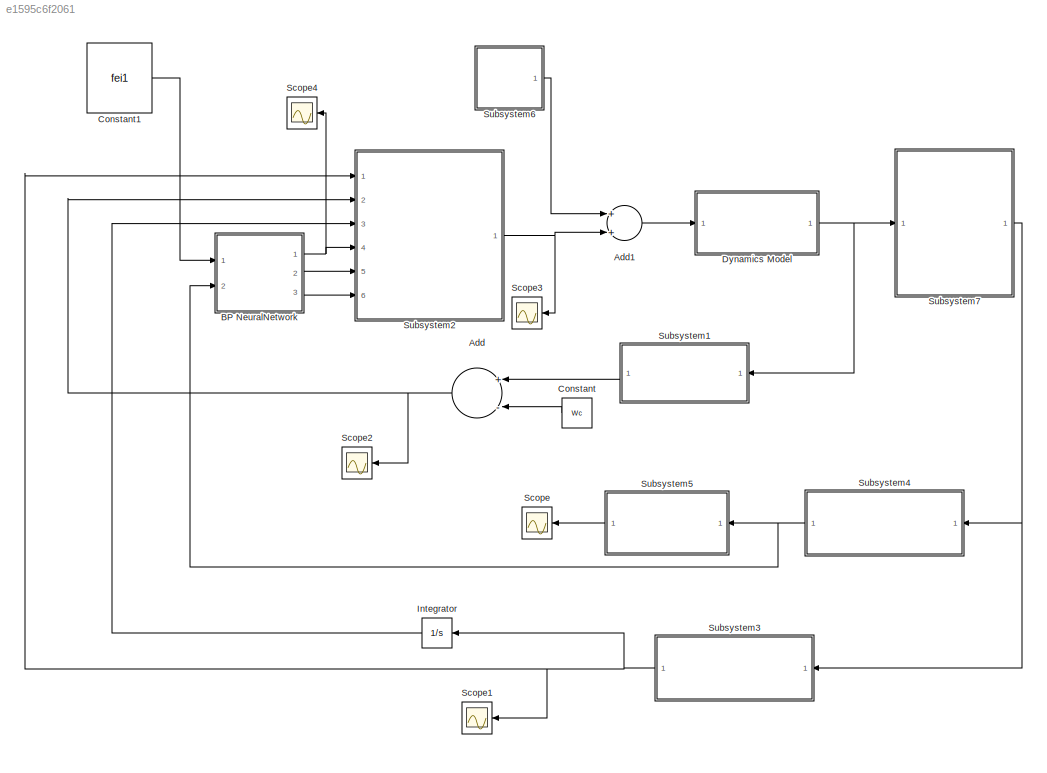
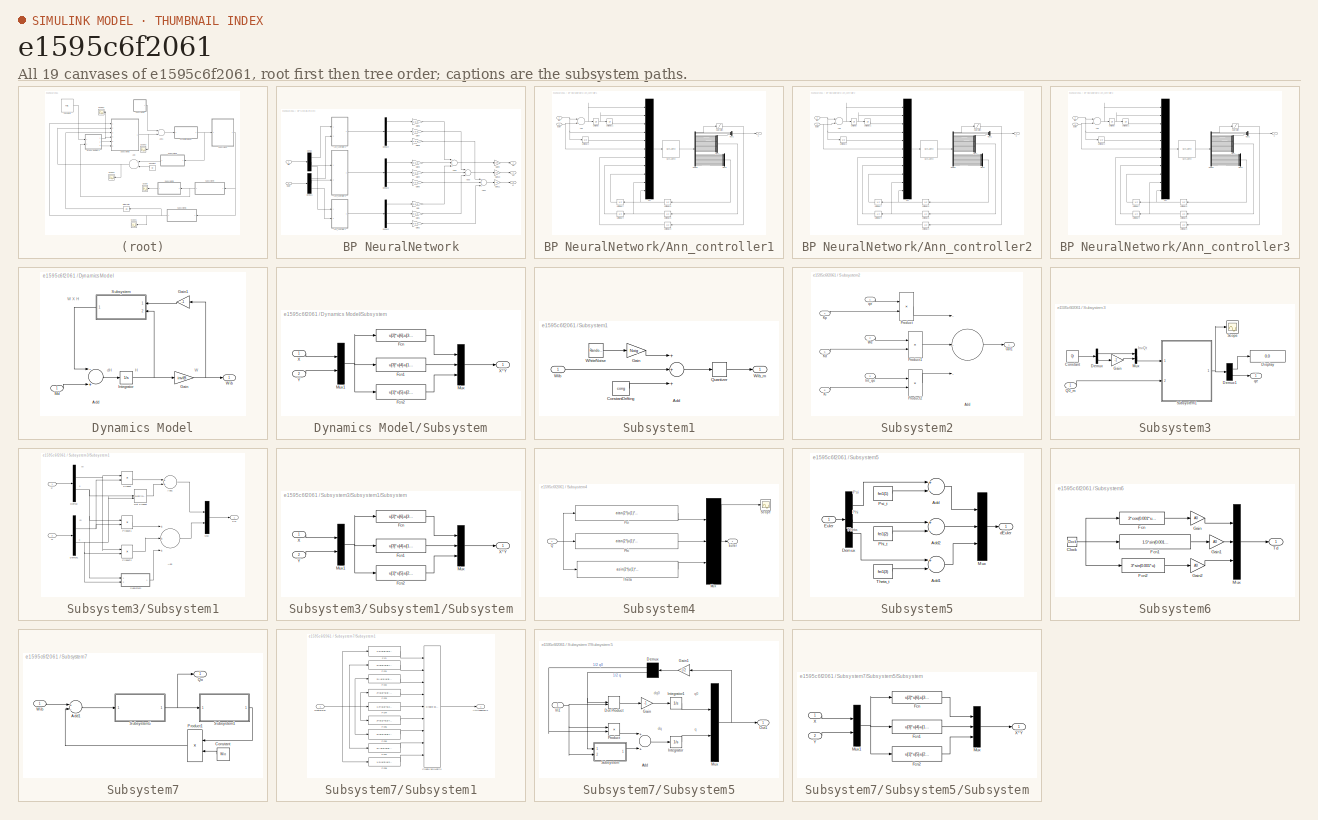
[diagram: thumbnail index - all 19 canvases of the model, root first then tree order]
MODEL slx_e1595c6f2061
KIND model
CONFIG AbsTol = auto
CONFIG FixedStep = auto
CONFIG MaxStep = auto
CONFIG MinStep = auto
CONFIG RelTol = 1e-3
CONFIG SampleTimeConstraint = Unconstrained
CONFIG Solver = VariableStepAuto
CONFIG SolverMode = Auto
CONFIG SolverName = VariableStepAuto
CONFIG StartTime = 0.0
CONFIG StopTime = 100
BLOCK [Sum] Add
  InputSameDT = off
  Inputs = +-
  OutDataTypeStr = Inherit: Inherit via internal rule
  Ports = [2, 1]
  SaturateOnIntegerOverflow = off
BLOCK [Sum] Add1
  InputSameDT = off
  OutDataTypeStr = Inherit: Inherit via internal rule
  Ports = [2, 1]
  SaturateOnIntegerOverflow = off
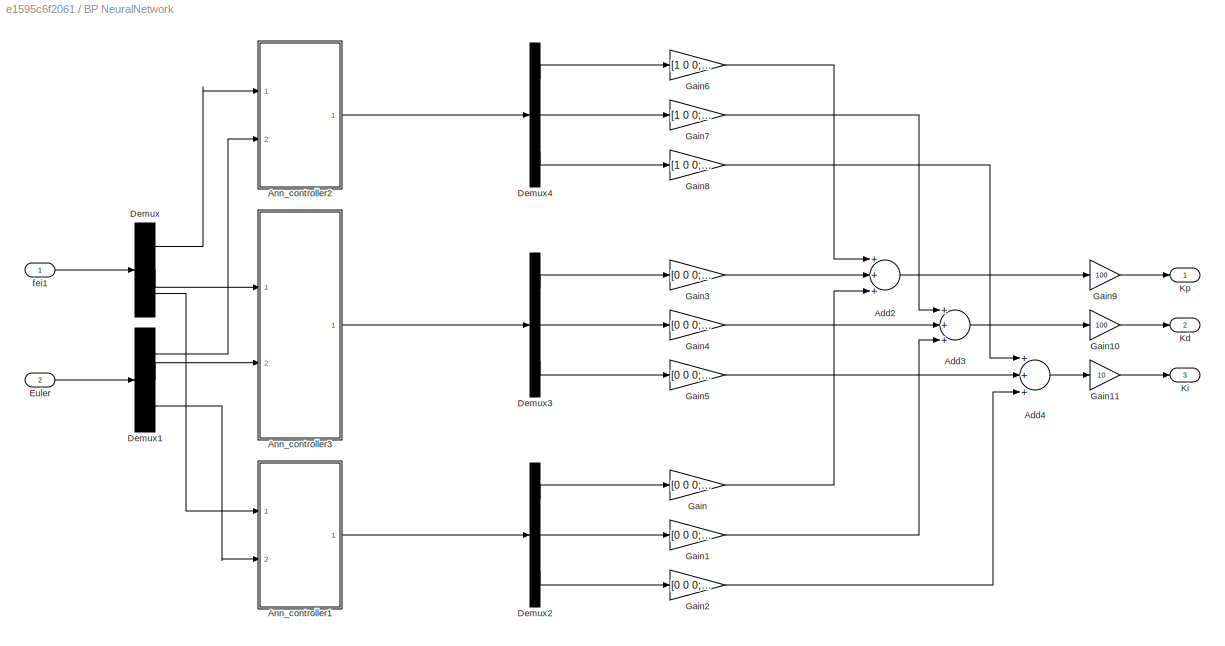
BLOCK [SubSystem] BP NeuralNetwork
  Ports = [2, 3]
  RequestExecContextInheritance = off
  Variant = off
BLOCK [Sum] BP NeuralNetwork/Add2
  InputSameDT = off
  Inputs = +++
  OutDataTypeStr = Inherit: Inherit via internal rule
  Ports = [3, 1]
  SaturateOnIntegerOverflow = off
BLOCK [Sum] BP NeuralNetwork/Add3
  InputSameDT = off
  Inputs = +++
  OutDataTypeStr = Inherit: Inherit via internal rule
  Ports = [3, 1]
  SaturateOnIntegerOverflow = off
BLOCK [Sum] BP NeuralNetwork/Add4
  InputSameDT = off
  Inputs = +++
  OutDataTypeStr = Inherit: Inherit via internal rule
  Ports = [3, 1]
  SaturateOnIntegerOverflow = off
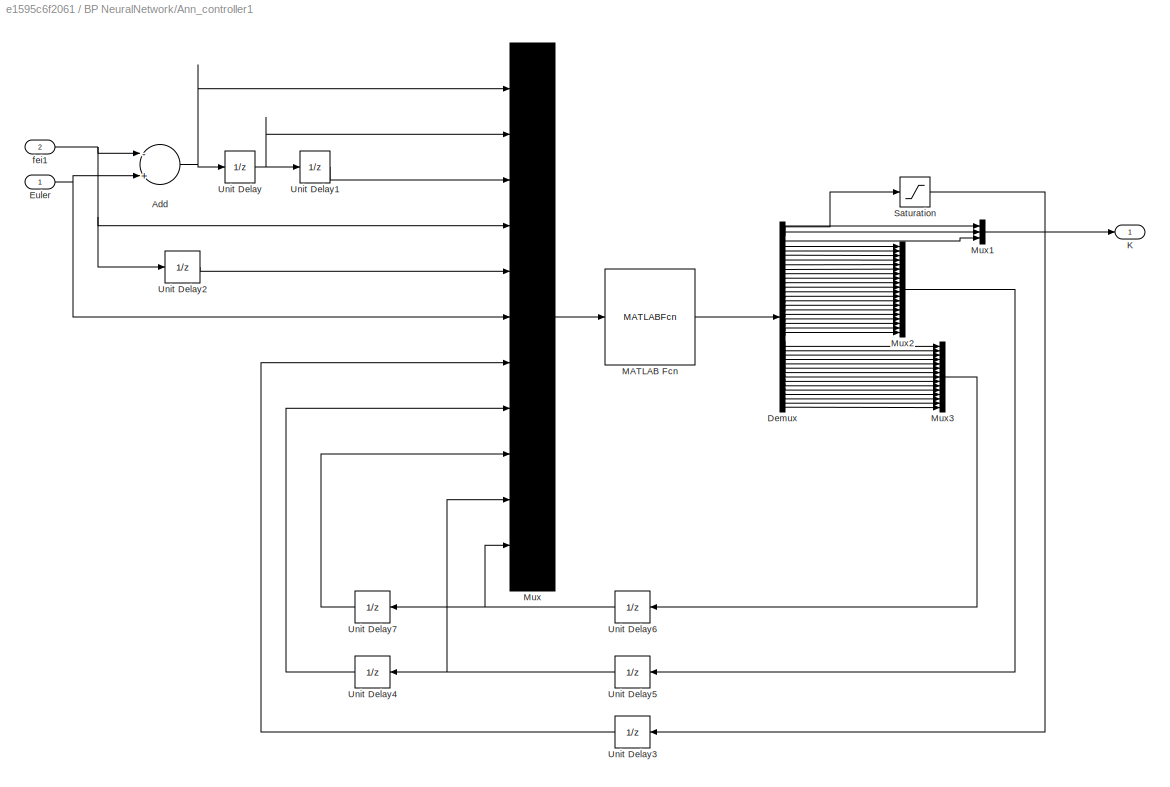
BLOCK [SubSystem] BP NeuralNetwork/Ann_controller1
  Ports = [2, 1]
  RequestExecContextInheritance = off
  Variant = off
BLOCK [Sum] BP NeuralNetwork/Ann_controller1/Add
  InputSameDT = off
  Inputs = -+
  OutDataTypeStr = Inherit: Inherit via internal rule
  Ports = [2, 1]
  SaturateOnIntegerOverflow = off
BLOCK [Demux] BP NeuralNetwork/Ann_controller1/Demux
  DisplayOption = bar
  Outputs = 39
  Ports = [1, 39]
BLOCK [Inport] BP NeuralNetwork/Ann_controller1/Euler
  IconDisplay = Port number
BLOCK [Outport] BP NeuralNetwork/Ann_controller1/K
  IconDisplay = Port number
BLOCK [MATLABFcn] BP NeuralNetwork/Ann_controller1/MATLAB Fcn
  MATLABFcn = BP_pid
  Output1D = off
  Ports = [1, 1]
BLOCK [Mux] BP NeuralNetwork/Ann_controller1/Mux
  DisplayOption = bar
  Inputs = 11
  Ports = [11, 1]
BLOCK [Mux] BP NeuralNetwork/Ann_controller1/Mux1
  DisplayOption = bar
  Inputs = 3
  Ports = [3, 1]
BLOCK [Mux] BP NeuralNetwork/Ann_controller1/Mux2
  DisplayOption = bar
  Inputs = 20
  Ports = [20, 1]
BLOCK [Mux] BP NeuralNetwork/Ann_controller1/Mux3
  DisplayOption = bar
  Inputs = 15
  Ports = [15, 1]
BLOCK [Saturate] BP NeuralNetwork/Ann_controller1/Saturation
  InputPortMap = u0
  LowerLimit = 0
  Ports = [1, 1]
  UpperLimit = 1
BLOCK [UnitDelay] BP NeuralNetwork/Ann_controller1/Unit Delay
BLOCK [UnitDelay] BP NeuralNetwork/Ann_controller1/Unit Delay1
BLOCK [UnitDelay] BP NeuralNetwork/Ann_controller1/Unit Delay2
BLOCK [UnitDelay] BP NeuralNetwork/Ann_controller1/Unit Delay3
BLOCK [UnitDelay] BP NeuralNetwork/Ann_controller1/Unit Delay4
  InitialCondition = rand(20,1)
BLOCK [UnitDelay] BP NeuralNetwork/Ann_controller1/Unit Delay5
  InitialCondition = rand(20,1)
BLOCK [UnitDelay] BP NeuralNetwork/Ann_controller1/Unit Delay6
  InitialCondition = rand(15,1)
BLOCK [UnitDelay] BP NeuralNetwork/Ann_controller1/Unit Delay7
  InitialCondition = rand(15,1)
BLOCK [Inport] BP NeuralNetwork/Ann_controller1/fei1
  IconDisplay = Port number
  Port = 2
BLOCK [SubSystem] BP NeuralNetwork/Ann_controller2
  Ports = [2, 1]
  RequestExecContextInheritance = off
  Variant = off
BLOCK [Sum] BP NeuralNetwork/Ann_controller2/Add
  InputSameDT = off
  Inputs = -+
  OutDataTypeStr = Inherit: Inherit via internal rule
  Ports = [2, 1]
  SaturateOnIntegerOverflow = off
BLOCK [Demux] BP NeuralNetwork/Ann_controller2/Demux
  DisplayOption = bar
  Outputs = 39
  Ports = [1, 39]
BLOCK [Inport] BP NeuralNetwork/Ann_controller2/Euler
  IconDisplay = Port number
BLOCK [Outport] BP NeuralNetwork/Ann_controller2/K
  IconDisplay = Port number
BLOCK [MATLABFcn] BP NeuralNetwork/Ann_controller2/MATLAB Fcn
  MATLABFcn = BP_pid
  Output1D = off
  Ports = [1, 1]
BLOCK [Mux] BP NeuralNetwork/Ann_controller2/Mux
  DisplayOption = bar
  Inputs = 11
  Ports = [11, 1]
BLOCK [Mux] BP NeuralNetwork/Ann_controller2/Mux1
  DisplayOption = bar
  Inputs = 3
  Ports = [3, 1]
BLOCK [Mux] BP NeuralNetwork/Ann_controller2/Mux2
  DisplayOption = bar
  Inputs = 20
  Ports = [20, 1]
BLOCK [Mux] BP NeuralNetwork/Ann_controller2/Mux3
  DisplayOption = bar
  Inputs = 15
  Ports = [15, 1]
BLOCK [Saturate] BP NeuralNetwork/Ann_controller2/Saturation
  InputPortMap = u0
  LowerLimit = 0
  Ports = [1, 1]
  UpperLimit = 1
BLOCK [UnitDelay] BP NeuralNetwork/Ann_controller2/Unit Delay
BLOCK [UnitDelay] BP NeuralNetwork/Ann_controller2/Unit Delay1
BLOCK [UnitDelay] BP NeuralNetwork/Ann_controller2/Unit Delay2
BLOCK [UnitDelay] BP NeuralNetwork/Ann_controller2/Unit Delay3
BLOCK [UnitDelay] BP NeuralNetwork/Ann_controller2/Unit Delay4
  InitialCondition = rand(20,1)
BLOCK [UnitDelay] BP NeuralNetwork/Ann_controller2/Unit Delay5
  InitialCondition = rand(20,1)
BLOCK [UnitDelay] BP NeuralNetwork/Ann_controller2/Unit Delay6
  InitialCondition = rand(15,1)
BLOCK [UnitDelay] BP NeuralNetwork/Ann_controller2/Unit Delay7
  InitialCondition = rand(15,1)
BLOCK [Inport] BP NeuralNetwork/Ann_controller2/fei1
  IconDisplay = Port number
  Port = 2
BLOCK [SubSystem] BP NeuralNetwork/Ann_controller3
  Ports = [2, 1]
  RequestExecContextInheritance = off
  Variant = off
BLOCK [Sum] BP NeuralNetwork/Ann_controller3/Add
  InputSameDT = off
  Inputs = -+
  OutDataTypeStr = Inherit: Inherit via internal rule
  Ports = [2, 1]
  SaturateOnIntegerOverflow = off
BLOCK [Demux] BP NeuralNetwork/Ann_controller3/Demux
  DisplayOption = bar
  Outputs = 39
  Ports = [1, 39]
BLOCK [Inport] BP NeuralNetwork/Ann_controller3/Euler
  IconDisplay = Port number
BLOCK [Outport] BP NeuralNetwork/Ann_controller3/K
  IconDisplay = Port number
BLOCK [MATLABFcn] BP NeuralNetwork/Ann_controller3/MATLAB Fcn
  MATLABFcn = BP_pid
  Output1D = off
  Ports = [1, 1]
BLOCK [Mux] BP NeuralNetwork/Ann_controller3/Mux
  DisplayOption = bar
  Inputs = 11
  Ports = [11, 1]
BLOCK [Mux] BP NeuralNetwork/Ann_controller3/Mux1
  DisplayOption = bar
  Inputs = 3
  Ports = [3, 1]
BLOCK [Mux] BP NeuralNetwork/Ann_controller3/Mux2
  DisplayOption = bar
  Inputs = 20
  Ports = [20, 1]
BLOCK [Mux] BP NeuralNetwork/Ann_controller3/Mux3
  DisplayOption = bar
  Inputs = 15
  Ports = [15, 1]
BLOCK [Saturate] BP NeuralNetwork/Ann_controller3/Saturation
  InputPortMap = u0
  LowerLimit = 0
  Ports = [1, 1]
  UpperLimit = 1
BLOCK [UnitDelay] BP NeuralNetwork/Ann_controller3/Unit Delay
BLOCK [UnitDelay] BP NeuralNetwork/Ann_controller3/Unit Delay1
BLOCK [UnitDelay] BP NeuralNetwork/Ann_controller3/Unit Delay2
BLOCK [UnitDelay] BP NeuralNetwork/Ann_controller3/Unit Delay3
BLOCK [UnitDelay] BP NeuralNetwork/Ann_controller3/Unit Delay4
  InitialCondition = rand(20,1)
BLOCK [UnitDelay] BP NeuralNetwork/Ann_controller3/Unit Delay5
  InitialCondition = rand(20,1)
BLOCK [UnitDelay] BP NeuralNetwork/Ann_controller3/Unit Delay6
  InitialCondition = rand(15,1)
BLOCK [UnitDelay] BP NeuralNetwork/Ann_controller3/Unit Delay7
  InitialCondition = rand(15,1)
BLOCK [Inport] BP NeuralNetwork/Ann_controller3/fei1
  IconDisplay = Port number
  Port = 2
BLOCK [Demux] BP NeuralNetwork/Demux
  DisplayOption = bar
  Outputs = [1 1 1]
  Ports = [1, 3]
BLOCK [Demux] BP NeuralNetwork/Demux1
  DisplayOption = bar
  Outputs = [1;1;1]
  Ports = [1, 3]
BLOCK [Demux] BP NeuralNetwork/Demux2
  DisplayOption = bar
  Outputs = [1 1 1]
  Ports = [1, 3]
BLOCK [Demux] BP NeuralNetwork/Demux3
  DisplayOption = bar
  Outputs = [1 1 1]
  Ports = [1, 3]
BLOCK [Demux] BP NeuralNetwork/Demux4
  DisplayOption = bar
  Outputs = [1 1 1]
  Ports = [1, 3]
BLOCK [Inport] BP NeuralNetwork/Euler
  IconDisplay = Port number
  Port = 2
BLOCK [Gain] BP NeuralNetwork/Gain
  Gain = [0 0 0;0 0 0;0 0 1]
  OutDataTypeStr = Inherit: Inherit via internal rule
  ParamDataTypeStr = Inherit: Inherit via internal rule
  SaturateOnIntegerOverflow = off
BLOCK [Gain] BP NeuralNetwork/Gain1
  Gain = [0 0 0;0 0 0;0 0 1]
  OutDataTypeStr = Inherit: Inherit via internal rule
  ParamDataTypeStr = Inherit: Inherit via internal rule
  SaturateOnIntegerOverflow = off
BLOCK [Gain] BP NeuralNetwork/Gain10
  Gain = 100
  OutDataTypeStr = Inherit: Inherit via internal rule
  ParamDataTypeStr = Inherit: Inherit via internal rule
  SaturateOnIntegerOverflow = off
BLOCK [Gain] BP NeuralNetwork/Gain11
  Gain = 10
  OutDataTypeStr = Inherit: Inherit via internal rule
  ParamDataTypeStr = Inherit: Inherit via internal rule
  SaturateOnIntegerOverflow = off
BLOCK [Gain] BP NeuralNetwork/Gain2
  Gain = [0 0 0;0 0 0;0 0 1]
  OutDataTypeStr = Inherit: Inherit via internal rule
  ParamDataTypeStr = Inherit: Inherit via internal rule
  SaturateOnIntegerOverflow = off
BLOCK [Gain] BP NeuralNetwork/Gain3
  Gain = [0 0 0;0 1 0;0 0 0]
  OutDataTypeStr = Inherit: Inherit via internal rule
  ParamDataTypeStr = Inherit: Inherit via internal rule
  SaturateOnIntegerOverflow = off
BLOCK [Gain] BP NeuralNetwork/Gain4
  Gain = [0 0 0;0 1 0;0 0 0]
  OutDataTypeStr = Inherit: Inherit via internal rule
  ParamDataTypeStr = Inherit: Inherit via internal rule
  SaturateOnIntegerOverflow = off
BLOCK [Gain] BP NeuralNetwork/Gain5
  Gain = [0 0 0;0 1 0;0 0 0]
  OutDataTypeStr = Inherit: Inherit via internal rule
  ParamDataTypeStr = Inherit: Inherit via internal rule
  SaturateOnIntegerOverflow = off
BLOCK [Gain] BP NeuralNetwork/Gain6
  Gain = [1 0 0;0 0 0;0 0 0]
  OutDataTypeStr = Inherit: Inherit via internal rule
  ParamDataTypeStr = Inherit: Inherit via internal rule
  SaturateOnIntegerOverflow = off
BLOCK [Gain] BP NeuralNetwork/Gain7
  Gain = [1 0 0;0 0 0;0 0 0]
  OutDataTypeStr = Inherit: Inherit via internal rule
  ParamDataTypeStr = Inherit: Inherit via internal rule
  SaturateOnIntegerOverflow = off
BLOCK [Gain] BP NeuralNetwork/Gain8
  Gain = [1 0 0;0 0 0;0 0 0]
  OutDataTypeStr = Inherit: Inherit via internal rule
  ParamDataTypeStr = Inherit: Inherit via internal rule
  SaturateOnIntegerOverflow = off
BLOCK [Gain] BP NeuralNetwork/Gain9
  Gain = 100
  OutDataTypeStr = Inherit: Inherit via internal rule
  ParamDataTypeStr = Inherit: Inherit via internal rule
  SaturateOnIntegerOverflow = off
BLOCK [Outport] BP NeuralNetwork/Kd
  IconDisplay = Port number
  Port = 2
BLOCK [Outport] BP NeuralNetwork/Ki
  IconDisplay = Port number
  Port = 3
BLOCK [Outport] BP NeuralNetwork/Kp
  IconDisplay = Port number
BLOCK [Inport] BP NeuralNetwork/fei1
  IconDisplay = Port number
BLOCK [Constant] Constant
  Value = Wc
BLOCK [Constant] Constant1
  Value = fei1
BLOCK [SubSystem] Dynamics Model
  Ports = [1, 1]
  RequestExecContextInheritance = off
  Variant = off
BLOCK [Sum] Dynamics Model/Add
  InputSameDT = off
  Inputs = -+
  OutDataTypeStr = Inherit: Inherit via internal rule
  Ports = [2, 1]
  SaturateOnIntegerOverflow = off
BLOCK [Gain] Dynamics Model/Gain
  Gain = invIB
  Multiplication = Matrix(u*K)
  OutDataTypeStr = Inherit: Inherit via internal rule
  ParamDataTypeStr = Inherit: Inherit via internal rule
  SaturateOnIntegerOverflow = off
BLOCK [Gain] Dynamics Model/Gain1
  Gain = -1
  OutDataTypeStr = Inherit: Inherit via internal rule
  ParamDataTypeStr = Inherit: Inherit via internal rule
  SaturateOnIntegerOverflow = off
BLOCK [Integrator] Dynamics Model/Integrator
  InitialCondition = HB0
  Ports = [1, 1]
BLOCK [Inport] Dynamics Model/Md
  IconDisplay = Port number
BLOCK [SubSystem] Dynamics Model/Subsystem
  Ports = [2, 1]
  RequestExecContextInheritance = off
  Variant = off
BLOCK [Fcn] Dynamics Model/Subsystem/Fcn
  Expr = u[2]*u[6]-u[3]*u[5]
BLOCK [Fcn] Dynamics Model/Subsystem/Fcn1
  Expr = u[3]*u[4]-u[1]*u[6]
BLOCK [Fcn] Dynamics Model/Subsystem/Fcn2
  Expr = u[1]*u[5]-u[2]*u[4]
BLOCK [Mux] Dynamics Model/Subsystem/Mux
  DisplayOption = bar
  Inputs = [1 1 1]
  Ports = [3, 1]
BLOCK [Mux] Dynamics Model/Subsystem/Mux1
  DisplayOption = bar
  Inputs = [3 3]
  Ports = [2, 1]
BLOCK [Inport] Dynamics Model/Subsystem/X
  IconDisplay = Port number
BLOCK [Outport] Dynamics Model/Subsystem/X*Y
  IconDisplay = Port number
BLOCK [Inport] Dynamics Model/Subsystem/Y
  IconDisplay = Port number
  Port = 2
BLOCK [Outport] Dynamics Model/Wib
  IconDisplay = Port number
BLOCK [Integrator] Integrator
  Ports = [1, 1]
BLOCK [Scope] Scope
  Ports = [1]
  ScopeSpecificationString = Simulink.scopes.TimeScopeBlockCfg('CurrentConfiguration', extmgr.ConfigurationSet(extmgr.Configuration('Core','General UI',true,'FigureColor',[1 1 1]),extmgr.Configuration('Core','Source UI',true),extmgr.Configuration('Sources','WiredSimulink',true,'DataLoggingVariableName','ScopeData1'),extmgr.Configuration('Visuals','Time Domain',true,'SerializedDisplays',{struct('MinYLimReal','-1.14389','MaxYLi...<+1731ch>
BLOCK [Scope] Scope1
  Ports = [1]
  ScopeSpecificationString = Simulink.scopes.TimeScopeBlockCfg('CurrentConfiguration', extmgr.ConfigurationSet(extmgr.Configuration('Core','General UI',true),extmgr.Configuration('Core','Source UI',true),extmgr.Configuration('Sources','WiredSimulink',true,'DataLoggingVariableName','ScopeData2'),extmgr.Configuration('Visuals','Time Domain',true,'SerializedDisplays',{struct('MinYLimReal','-0.42781','MaxYLimReal','0.71841','YLab...<+1401ch>
BLOCK [Scope] Scope2
  Ports = [1]
  ScopeSpecificationString = Simulink.scopes.TimeScopeBlockCfg('CurrentConfiguration', extmgr.ConfigurationSet(extmgr.Configuration('Core','General UI',true,'FigureColor',[1 1 1]),extmgr.Configuration('Core','Source UI',true),extmgr.Configuration('Sources','WiredSimulink',true,'DataLoggingVariableName','ScopeData3'),extmgr.Configuration('Visuals','Time Domain',true,'SerializedDisplays',{struct('MinYLimReal','-0.62337','MaxYLi...<+1561ch>
BLOCK [Scope] Scope3
  Ports = [1]
  ScopeSpecificationString = Simulink.scopes.TimeScopeBlockCfg('CurrentConfiguration', extmgr.ConfigurationSet(extmgr.Configuration('Core','General UI',true,'FigureColor',[1 1 1]),extmgr.Configuration('Core','Source UI',true),extmgr.Configuration('Sources','WiredSimulink',true,'DataLoggingVariableName','ScopeData4'),extmgr.Configuration('Visuals','Time Domain',true,'SerializedDisplays',{struct('MinYLimReal','-62.59981','MaxYL...<+1789ch>
BLOCK [Scope] Scope4
  Ports = [1]
  ScopeSpecificationString = Simulink.scopes.TimeScopeBlockCfg('CurrentConfiguration', extmgr.ConfigurationSet(extmgr.Configuration('Core','General UI',true),extmgr.Configuration('Core','Source UI',true),extmgr.Configuration('Sources','WiredSimulink',true,'DataLoggingVariableName','ScopeData1'),extmgr.Configuration('Visuals','Time Domain',true,'SerializedDisplays',{struct('MinYLimReal','-11.88309','MaxYLimReal','106.94784','Y...<+1600ch>
BLOCK [SubSystem] Subsystem1
  Ports = [1, 1]
  RequestExecContextInheritance = off
  Variant = off
BLOCK [Sum] Subsystem1/Add
  InputSameDT = off
  Inputs = +++
  OutDataTypeStr = Inherit: Inherit via internal rule
  Ports = [3, 1]
  SaturateOnIntegerOverflow = off
BLOCK [Constant] Subsystem1/ConstantDrifting
  Value = cong
BLOCK [Gain] Subsystem1/Gain
  Gain = Noig
  OutDataTypeStr = Inherit: Inherit via internal rule
  ParamDataTypeStr = Inherit: Inherit via internal rule
  SaturateOnIntegerOverflow = off
BLOCK [Quantizer] Subsystem1/Quantizer
  QuantizationInterval = Gyquan
BLOCK [RandomNumber] Subsystem1/WhiteNoise
  Mean = [0,0,0]
  SampleTime = Tscontrol
  Seed = fix(abs(10000*rand([3,1])))
  Variance = [1,1,1]
BLOCK [Inport] Subsystem1/Wib
  IconDisplay = Port number
BLOCK [Outport] Subsystem1/Wib_m
  IconDisplay = Port number
BLOCK [SubSystem] Subsystem2
  Ports = [6, 1]
  RequestExecContextInheritance = off
  Variant = off
BLOCK [Sum] Subsystem2/Add
  InputSameDT = off
  Inputs = ---
  OutDataTypeStr = Inherit: Inherit via internal rule
  Ports = [3, 1]
  SaturateOnIntegerOverflow = off
BLOCK [Inport] Subsystem2/Int_qe
  IconDisplay = Port number
  Port = 3
BLOCK [Inport] Subsystem2/Kd
  IconDisplay = Port number
  Port = 5
BLOCK [Inport] Subsystem2/Ki
  IconDisplay = Port number
  Port = 6
BLOCK [Inport] Subsystem2/Kp
  IconDisplay = Port number
  Port = 4
BLOCK [Outport] Subsystem2/Out1
  IconDisplay = Port number
BLOCK [Product] Subsystem2/Product
  InputSameDT = off
  Multiplication = Matrix(*)
  OutDataTypeStr = Inherit: Inherit via internal rule
  Ports = [2, 1]
  RndMeth = Floor
  SaturateOnIntegerOverflow = off
BLOCK [Product] Subsystem2/Product1
  InputSameDT = off
  Multiplication = Matrix(*)
  OutDataTypeStr = Inherit: Inherit via internal rule
  Ports = [2, 1]
  RndMeth = Floor
  SaturateOnIntegerOverflow = off
BLOCK [Product] Subsystem2/Product2
  InputSameDT = off
  Multiplication = Matrix(*)
  OutDataTypeStr = Inherit: Inherit via internal rule
  Ports = [2, 1]
  RndMeth = Floor
  SaturateOnIntegerOverflow = off
BLOCK [Inport] Subsystem2/We
  IconDisplay = Port number
  Port = 2
BLOCK [Inport] Subsystem2/qe
  IconDisplay = Port number
BLOCK [SubSystem] Subsystem3
  Ports = [1, 1]
  RequestExecContextInheritance = off
  Variant = off
BLOCK [Constant] Subsystem3/Constant
  Value = Qt
BLOCK [Demux] Subsystem3/Demux
  DisplayOption = bar
  Outputs = 2
  Ports = [1, 2]
BLOCK [Demux] Subsystem3/Demux1
  DisplayOption = bar
  Outputs = [1 3]
  Ports = [1, 2]
BLOCK [Display] Subsystem3/Display
  Decimation = 1
  Ports = [1]
BLOCK [Gain] Subsystem3/Gain
  Gain = -1
  OutDataTypeStr = Inherit: Inherit via internal rule
  ParamDataTypeStr = Inherit: Inherit via internal rule
  SaturateOnIntegerOverflow = off
BLOCK [Mux] Subsystem3/Mux
  DisplayOption = bar
  Inputs = 2
  Ports = [2, 1]
BLOCK [Inport] Subsystem3/Q0_m
  IconDisplay = Port number
BLOCK [Scope] Subsystem3/Scope
  Ports = [1]
  ScopeSpecificationString = Simulink.scopes.TimeScopeBlockCfg('CurrentConfiguration', extmgr.ConfigurationSet(extmgr.Configuration('Core','General UI',true,'FigureColor',[1 1 1]),extmgr.Configuration('Core','Source UI',true),extmgr.Configuration('Sources','WiredSimulink',true,'DataLoggingVariableName','ScopeData1'),extmgr.Configuration('Visuals','Time Domain',true,'SerializedDisplays',{struct('MinYLimReal','-0.4765','MaxYLim...<+1884ch>
BLOCK [SubSystem] Subsystem3/Subsystem1
  Ports = [2, 1]
  RequestExecContextInheritance = off
  Variant = off
BLOCK [Sum] Subsystem3/Subsystem1/Add
  InputSameDT = off
  Inputs = +++
  OutDataTypeStr = Inherit: Inherit via internal rule
  Ports = [3, 1]
  SaturateOnIntegerOverflow = off
BLOCK [Sum] Subsystem3/Subsystem1/Add1
  InputSameDT = off
  OutDataTypeStr = Inherit: Inherit via internal rule
  Ports = [2, 1]
  SaturateOnIntegerOverflow = off
BLOCK [Demux] Subsystem3/Subsystem1/Demux
  DisplayOption = bar
  Outputs = [1 3]
  Ports = [1, 2]
BLOCK [Demux] Subsystem3/Subsystem1/Demux1
  DisplayOption = bar
  Outputs = [1 3]
  Ports = [1, 2]
BLOCK [DotProduct] Subsystem3/Subsystem1/Dot Product
  OutDataTypeStr = Inherit: Inherit via internal rule
BLOCK [Mux] Subsystem3/Subsystem1/Mux
  DisplayOption = bar
  Inputs = 2
  Ports = [2, 1]
BLOCK [Inport] Subsystem3/Subsystem1/P
  IconDisplay = Port number
BLOCK [Outport] Subsystem3/Subsystem1/PQ
  IconDisplay = Port number
BLOCK [Product] Subsystem3/Subsystem1/Product
  InputSameDT = off
  OutDataTypeStr = Inherit: Inherit via internal rule
  Ports = [2, 1]
  RndMeth = Floor
  SaturateOnIntegerOverflow = off
BLOCK [Product] Subsystem3/Subsystem1/Product1
  InputSameDT = off
  OutDataTypeStr = Inherit: Inherit via internal rule
  Ports = [2, 1]
  RndMeth = Floor
  SaturateOnIntegerOverflow = off
BLOCK [Product] Subsystem3/Subsystem1/Product2
  InputSameDT = off
  OutDataTypeStr = Inherit: Inherit via internal rule
  Ports = [2, 1]
  RndMeth = Floor
  SaturateOnIntegerOverflow = off
BLOCK [Inport] Subsystem3/Subsystem1/Q
  IconDisplay = Port number
  Port = 2
BLOCK [SubSystem] Subsystem3/Subsystem1/Subsystem
  Ports = [2, 1]
  RequestExecContextInheritance = off
  Variant = off
BLOCK [Fcn] Subsystem3/Subsystem1/Subsystem/Fcn
  Expr = u[2]*u[6]-u[3]*u[5]
BLOCK [Fcn] Subsystem3/Subsystem1/Subsystem/Fcn1
  Expr = u[3]*u[4]-u[1]*u[6]
BLOCK [Fcn] Subsystem3/Subsystem1/Subsystem/Fcn2
  Expr = u[1]*u[5]-u[2]*u[4]
BLOCK [Mux] Subsystem3/Subsystem1/Subsystem/Mux
  DisplayOption = bar
  Inputs = [1 1 1]
  Ports = [3, 1]
BLOCK [Mux] Subsystem3/Subsystem1/Subsystem/Mux1
  DisplayOption = bar
  Inputs = [3 3]
  Ports = [2, 1]
BLOCK [Inport] Subsystem3/Subsystem1/Subsystem/X
  IconDisplay = Port number
BLOCK [Outport] Subsystem3/Subsystem1/Subsystem/X*Y
  IconDisplay = Port number
BLOCK [Inport] Subsystem3/Subsystem1/Subsystem/Y
  IconDisplay = Port number
  Port = 2
BLOCK [Outport] Subsystem3/qe
  IconDisplay = Port number
BLOCK [SubSystem] Subsystem4
  Ports = [1, 1]
  RequestExecContextInheritance = off
  Variant = off
BLOCK [Outport] Subsystem4/Euler
  IconDisplay = Port number
BLOCK [Mux] Subsystem4/Mux
  DisplayOption = bar
  Inputs = 3
  Ports = [3, 1]
BLOCK [Fcn] Subsystem4/Phi
  Expr = atan(2*(u(1)*u(4)-u(3)*u(2))/(2*(u(1)^2+u(3)^2)-1))
BLOCK [Fcn] Subsystem4/Psi
  Expr = atan(2*(u(1)*u(3)-u(2)*u(4))/(2*(u(1)^2+u(4)^2)-1))
BLOCK [Inport] Subsystem4/Q
  IconDisplay = Port number
BLOCK [Scope] Subsystem4/Scope
  Ports = [1]
  ScopeSpecificationString = Simulink.scopes.TimeScopeBlockCfg('CurrentConfiguration', extmgr.ConfigurationSet(extmgr.Configuration('Core','General UI',true),extmgr.Configuration('Core','Source UI',true),extmgr.Configuration('Sources','WiredSimulink',true,'DataLoggingVariableName','ScopeData3'),extmgr.Configuration('Visuals','Time Domain',true,'SerializedDisplays',{struct('MinYLimReal','-1.00000','MaxYLimReal','1.00000','YLab...<+1472ch>
BLOCK [Fcn] Subsystem4/Theta
  Expr = asin(2*(u(1)*u(2)+u(4)*u(3)))
BLOCK [SubSystem] Subsystem5
  Ports = [1, 1]
  RequestExecContextInheritance = off
  Variant = off
BLOCK [Sum] Subsystem5/Add
  InputSameDT = off
  Inputs = +-
  OutDataTypeStr = Inherit: Inherit via internal rule
  Ports = [2, 1]
  SaturateOnIntegerOverflow = off
BLOCK [Sum] Subsystem5/Add1
  InputSameDT = off
  Inputs = +-
  OutDataTypeStr = Inherit: Inherit via internal rule
  Ports = [2, 1]
  SaturateOnIntegerOverflow = off
BLOCK [Sum] Subsystem5/Add2
  InputSameDT = off
  Inputs = +-
  OutDataTypeStr = Inherit: Inherit via internal rule
  Ports = [2, 1]
  SaturateOnIntegerOverflow = off
BLOCK [Demux] Subsystem5/Demux
  DisplayOption = bar
  Outputs = [1 1 1]
  Ports = [1, 3]
BLOCK [Inport] Subsystem5/Euler
  IconDisplay = Port number
BLOCK [Mux] Subsystem5/Mux
  DisplayOption = bar
  Inputs = 3
  Ports = [3, 1]
BLOCK [Constant] Subsystem5/Phi_t
  Value = fei1(2)
BLOCK [Constant] Subsystem5/Psi_t
  Value = fei1(1)
BLOCK [Constant] Subsystem5/Theta_t
  Value = fei1(3)
BLOCK [Outport] Subsystem5/dEuler
  IconDisplay = Port number
BLOCK [SubSystem] Subsystem6
  Ports = [0, 1]
  RequestExecContextInheritance = off
  Variant = off
BLOCK [Clock] Subsystem6/Clock
BLOCK [Fcn] Subsystem6/Fcn
  Expr = 3*cos(0.001*u)+1
BLOCK [Fcn] Subsystem6/Fcn1
  Expr = 1.5*sin(0.001*u)+3*cos(0.001*u)
BLOCK [Fcn] Subsystem6/Fcn2
  Expr = 3*sin(0.001*u)
BLOCK [Gain] Subsystem6/Gain
  Gain = A0
  OutDataTypeStr = Inherit: Inherit via internal rule
  ParamDataTypeStr = Inherit: Inherit via internal rule
  SaturateOnIntegerOverflow = off
BLOCK [Gain] Subsystem6/Gain1
  Gain = A0
  OutDataTypeStr = Inherit: Inherit via internal rule
  ParamDataTypeStr = Inherit: Inherit via internal rule
  SaturateOnIntegerOverflow = off
BLOCK [Gain] Subsystem6/Gain2
  Gain = A0
  OutDataTypeStr = Inherit: Inherit via internal rule
  ParamDataTypeStr = Inherit: Inherit via internal rule
  SaturateOnIntegerOverflow = off
BLOCK [Mux] Subsystem6/Mux
  DisplayOption = bar
  Inputs = 3
  Ports = [3, 1]
BLOCK [Outport] Subsystem6/Td
  IconDisplay = Port number
BLOCK [SubSystem] Subsystem7
  Ports = [1, 1]
  RequestExecContextInheritance = off
  Variant = off
BLOCK [Sum] Subsystem7/Add1
  InputSameDT = off
  Inputs = +-
  OutDataTypeStr = Inherit: Inherit via internal rule
  Ports = [2, 1]
  SaturateOnIntegerOverflow = off
BLOCK [Constant] Subsystem7/Constant
  Value = Wio
BLOCK [Product] Subsystem7/Product1
  InputSameDT = off
  Multiplication = Matrix(*)
  OutDataTypeStr = Inherit: Inherit via internal rule
  Ports = [2, 1]
  RndMeth = Floor
  SaturateOnIntegerOverflow = off
BLOCK [Outport] Subsystem7/Qo
  IconDisplay = Port number
BLOCK [SubSystem] Subsystem7/Subsystem1
  Ports = [1, 1]
  RequestExecContextInheritance = off
  Variant = off
BLOCK [Outport] Subsystem7/Subsystem1/AttitudeMarix 
  IconDisplay = Port number
BLOCK [Reference] Subsystem7/Subsystem1/Create 3x3 Matrix  REF=aerolibutil/Create 3x3 Matrix
  Ports = [9, 1]
  SourceBlock = aerolibutil/Create 3x3 Matrix
  SourceType = Create 3x3 Matrix
BLOCK [Fcn] Subsystem7/Subsystem1/Fcn
  Expr = 1-2*(u[3]*u[3]+u[4]*u[4])
BLOCK [Fcn] Subsystem7/Subsystem1/Fcn1
  Expr = 2*(u[2]*u[3]+u[1]*u[4])
BLOCK [Fcn] Subsystem7/Subsystem1/Fcn2
  Expr = 2*(-u[1]*u[3]-u[2]*u[4])
BLOCK [Fcn] Subsystem7/Subsystem1/Fcn3
  Expr = 2*(u[2]*u[3]-u[1]*u[4])
BLOCK [Fcn] Subsystem7/Subsystem1/Fcn4
  Expr = 1-2*(u[2]*u[2]-u[4]*u[4])
BLOCK [Fcn] Subsystem7/Subsystem1/Fcn5
  Expr = 2*(u[1]*u[2]+u[3]*u[4])
BLOCK [Fcn] Subsystem7/Subsystem1/Fcn6
  Expr = 2*(u[1]*u[3]+u[2]*u[4])
BLOCK [Fcn] Subsystem7/Subsystem1/Fcn7
  Expr = 2*(-u[1]*u[2]+u[3]*u[4])
BLOCK [Fcn] Subsystem7/Subsystem1/Fcn8
  Expr = 1-2*(u[2]*u[2]+u[3]*u[3])
BLOCK [Inport] Subsystem7/Subsystem1/Quaternion
  IconDisplay = Port number
BLOCK [SubSystem] Subsystem7/Subsystem5
  Ports = [1, 1]
  RequestExecContextInheritance = off
  Variant = off
BLOCK [Sum] Subsystem7/Subsystem5/Add
  InputSameDT = off
  OutDataTypeStr = Inherit: Inherit via internal rule
  Ports = [2, 1]
  SaturateOnIntegerOverflow = off
BLOCK [Demux] Subsystem7/Subsystem5/Demux
  DisplayOption = bar
  Outputs = [1 3]
  Ports = [1, 2]
BLOCK [DotProduct] Subsystem7/Subsystem5/Dot Product
  OutDataTypeStr = Inherit: Inherit via internal rule
BLOCK [Gain] Subsystem7/Subsystem5/Gain
  Gain = -1
  OutDataTypeStr = Inherit: Inherit via internal rule
  ParamDataTypeStr = Inherit: Inherit via internal rule
  SaturateOnIntegerOverflow = off
BLOCK [Gain] Subsystem7/Subsystem5/Gain1
  Gain = 1/2
  OutDataTypeStr = Inherit: Inherit via internal rule
  ParamDataTypeStr = Inherit: Inherit via internal rule
  SaturateOnIntegerOverflow = off
BLOCK [Inport] Subsystem7/Subsystem5/In1
  IconDisplay = Port number
BLOCK [Integrator] Subsystem7/Subsystem5/Integrator
  InitialCondition = Q0
  Ports = [1, 1]
BLOCK [Integrator] Subsystem7/Subsystem5/Integrator1
  InitialCondition = Q00
  Ports = [1, 1]
BLOCK [Mux] Subsystem7/Subsystem5/Mux
  DisplayOption = bar
  Inputs = 2
  Ports = [2, 1]
BLOCK [Outport] Subsystem7/Subsystem5/Out1
  IconDisplay = Port number
BLOCK [Product] Subsystem7/Subsystem5/Product
  InputSameDT = off
  OutDataTypeStr = Inherit: Inherit via internal rule
  Ports = [2, 1]
  RndMeth = Floor
  SaturateOnIntegerOverflow = off
BLOCK [SubSystem] Subsystem7/Subsystem5/Subsystem
  Ports = [2, 1]
  RequestExecContextInheritance = off
  Variant = off
BLOCK [Fcn] Subsystem7/Subsystem5/Subsystem/Fcn
  Expr = u[2]*u[6]-u[3]*u[5]
BLOCK [Fcn] Subsystem7/Subsystem5/Subsystem/Fcn1
  Expr = u[3]*u[4]-u[1]*u[6]
BLOCK [Fcn] Subsystem7/Subsystem5/Subsystem/Fcn2
  Expr = u[1]*u[5]-u[2]*u[4]
BLOCK [Mux] Subsystem7/Subsystem5/Subsystem/Mux
  DisplayOption = bar
  Inputs = [1 1 1]
  Ports = [3, 1]
BLOCK [Mux] Subsystem7/Subsystem5/Subsystem/Mux1
  DisplayOption = bar
  Inputs = [3 3]
  Ports = [2, 1]
BLOCK [Inport] Subsystem7/Subsystem5/Subsystem/X
  IconDisplay = Port number
BLOCK [Outport] Subsystem7/Subsystem5/Subsystem/X*Y
  IconDisplay = Port number
BLOCK [Inport] Subsystem7/Subsystem5/Subsystem/Y
  IconDisplay = Port number
  Port = 2
BLOCK [Inport] Subsystem7/Wib
  IconDisplay = Port number
ANNOTATION Dynamics Model: H
ANNOTATION Dynamics Model: W
ANNOTATION Dynamics Model: W X H
ANNOTATION Dynamics Model: dH
ANNOTATION Subsystem3: InvQt
ANNOTATION Subsystem3/Subsystem1: p
ANNOTATION Subsystem3/Subsystem1: p0
ANNOTATION Subsystem3/Subsystem1: q
ANNOTATION Subsystem3/Subsystem1: q0
ANNOTATION Subsystem5: Phi
ANNOTATION Subsystem5: Psi
ANNOTATION Subsystem5: Theta
ANNOTATION Subsystem7/Subsystem5: dq
ANNOTATION Subsystem7/Subsystem5: dq0
ANNOTATION Subsystem7/Subsystem5: q
ANNOTATION Subsystem7/Subsystem5: q0
LINE Add1:1 -> Dynamics Model:1
NET Add:1 -> Scope2:1, Subsystem2:2
LINE BP NeuralNetwork/Add2:1 -> BP NeuralNetwork/Gain9:1
LINE BP NeuralNetwork/Add3:1 -> BP NeuralNetwork/Gain10:1
LINE BP NeuralNetwork/Add4:1 -> BP NeuralNetwork/Gain11:1
NET BP NeuralNetwork/Ann_controller1/Add:1 -> BP NeuralNetwork/Ann_controller1/Mux:1, BP NeuralNetwork/Ann_controller1/Unit Delay:1
LINE BP NeuralNetwork/Ann_controller1/Demux:1 -> BP NeuralNetwork/Ann_controller1/Saturation:1
LINE BP NeuralNetwork/Ann_controller1/Demux:10 -> BP NeuralNetwork/Ann_controller1/Mux2:6
LINE BP NeuralNetwork/Ann_controller1/Demux:11 -> BP NeuralNetwork/Ann_controller1/Mux2:7
LINE BP NeuralNetwork/Ann_controller1/Demux:12 -> BP NeuralNetwork/Ann_controller1/Mux2:8
LINE BP NeuralNetwork/Ann_controller1/Demux:13 -> BP NeuralNetwork/Ann_controller1/Mux2:9
LINE BP NeuralNetwork/Ann_controller1/Demux:14 -> BP NeuralNetwork/Ann_controller1/Mux2:10
LINE BP NeuralNetwork/Ann_controller1/Demux:15 -> BP NeuralNetwork/Ann_controller1/Mux2:11
LINE BP NeuralNetwork/Ann_controller1/Demux:16 -> BP NeuralNetwork/Ann_controller1/Mux2:12
LINE BP NeuralNetwork/Ann_controller1/Demux:17 -> BP NeuralNetwork/Ann_controller1/Mux2:13
LINE BP NeuralNetwork/Ann_controller1/Demux:18 -> BP NeuralNetwork/Ann_controller1/Mux2:14
LINE BP NeuralNetwork/Ann_controller1/Demux:19 -> BP NeuralNetwork/Ann_controller1/Mux2:15
LINE BP NeuralNetwork/Ann_controller1/Demux:2 -> BP NeuralNetwork/Ann_controller1/Mux1:1
LINE BP NeuralNetwork/Ann_controller1/Demux:20 -> BP NeuralNetwork/Ann_controller1/Mux2:16
LINE BP NeuralNetwork/Ann_controller1/Demux:21 -> BP NeuralNetwork/Ann_controller1/Mux2:17
LINE BP NeuralNetwork/Ann_controller1/Demux:22 -> BP NeuralNetwork/Ann_controller1/Mux2:18
LINE BP NeuralNetwork/Ann_controller1/Demux:23 -> BP NeuralNetwork/Ann_controller1/Mux2:19
LINE BP NeuralNetwork/Ann_controller1/Demux:24 -> BP NeuralNetwork/Ann_controller1/Mux2:20
LINE BP NeuralNetwork/Ann_controller1/Demux:25 -> BP NeuralNetwork/Ann_controller1/Mux3:1
LINE BP NeuralNetwork/Ann_controller1/Demux:26 -> BP NeuralNetwork/Ann_controller1/Mux3:2
LINE BP NeuralNetwork/Ann_controller1/Demux:27 -> BP NeuralNetwork/Ann_controller1/Mux3:3
LINE BP NeuralNetwork/Ann_controller1/Demux:28 -> BP NeuralNetwork/Ann_controller1/Mux3:4
LINE BP NeuralNetwork/Ann_controller1/Demux:29 -> BP NeuralNetwork/Ann_controller1/Mux3:5
LINE BP NeuralNetwork/Ann_controller1/Demux:3 -> BP NeuralNetwork/Ann_controller1/Mux1:2
LINE BP NeuralNetwork/Ann_controller1/Demux:30 -> BP NeuralNetwork/Ann_controller1/Mux3:6
LINE BP NeuralNetwork/Ann_controller1/Demux:31 -> BP NeuralNetwork/Ann_controller1/Mux3:7
LINE BP NeuralNetwork/Ann_controller1/Demux:32 -> BP NeuralNetwork/Ann_controller1/Mux3:8
LINE BP NeuralNetwork/Ann_controller1/Demux:33 -> BP NeuralNetwork/Ann_controller1/Mux3:9
LINE BP NeuralNetwork/Ann_controller1/Demux:34 -> BP NeuralNetwork/Ann_controller1/Mux3:10
LINE BP NeuralNetwork/Ann_controller1/Demux:35 -> BP NeuralNetwork/Ann_controller1/Mux3:11
LINE BP NeuralNetwork/Ann_controller1/Demux:36 -> BP NeuralNetwork/Ann_controller1/Mux3:12
LINE BP NeuralNetwork/Ann_controller1/Demux:37 -> BP NeuralNetwork/Ann_controller1/Mux3:13
LINE BP NeuralNetwork/Ann_controller1/Demux:38 -> BP NeuralNetwork/Ann_controller1/Mux3:14
LINE BP NeuralNetwork/Ann_controller1/Demux:39 -> BP NeuralNetwork/Ann_controller1/Mux3:15
LINE BP NeuralNetwork/Ann_controller1/Demux:4 -> BP NeuralNetwork/Ann_controller1/Mux1:3
LINE BP NeuralNetwork/Ann_controller1/Demux:5 -> BP NeuralNetwork/Ann_controller1/Mux2:1
LINE BP NeuralNetwork/Ann_controller1/Demux:6 -> BP NeuralNetwork/Ann_controller1/Mux2:2
LINE BP NeuralNetwork/Ann_controller1/Demux:7 -> BP NeuralNetwork/Ann_controller1/Mux2:3
LINE BP NeuralNetwork/Ann_controller1/Demux:8 -> BP NeuralNetwork/Ann_controller1/Mux2:4
LINE BP NeuralNetwork/Ann_controller1/Demux:9 -> BP NeuralNetwork/Ann_controller1/Mux2:5
NET BP NeuralNetwork/Ann_controller1/Euler:1 -> BP NeuralNetwork/Ann_controller1/Add:2, BP NeuralNetwork/Ann_controller1/Mux:6
LINE BP NeuralNetwork/Ann_controller1/MATLAB Fcn:1 -> BP NeuralNetwork/Ann_controller1/Demux:1
LINE BP NeuralNetwork/Ann_controller1/Mux1:1 -> BP NeuralNetwork/Ann_controller1/K:1
LINE BP NeuralNetwork/Ann_controller1/Mux2:1 -> BP NeuralNetwork/Ann_controller1/Unit Delay5:1
LINE BP NeuralNetwork/Ann_controller1/Mux3:1 -> BP NeuralNetwork/Ann_controller1/Unit Delay6:1
LINE BP NeuralNetwork/Ann_controller1/Mux:1 -> BP NeuralNetwork/Ann_controller1/MATLAB Fcn:1
LINE BP NeuralNetwork/Ann_controller1/Saturation:1 -> BP NeuralNetwork/Ann_controller1/Unit Delay3:1
LINE BP NeuralNetwork/Ann_controller1/Unit Delay1:1 -> BP NeuralNetwork/Ann_controller1/Mux:3
LINE BP NeuralNetwork/Ann_controller1/Unit Delay2:1 -> BP NeuralNetwork/Ann_controller1/Mux:5
LINE BP NeuralNetwork/Ann_controller1/Unit Delay3:1 -> BP NeuralNetwork/Ann_controller1/Mux:7
LINE BP NeuralNetwork/Ann_controller1/Unit Delay4:1 -> BP NeuralNetwork/Ann_controller1/Mux:8
NET BP NeuralNetwork/Ann_controller1/Unit Delay5:1 -> BP NeuralNetwork/Ann_controller1/Mux:10, BP NeuralNetwork/Ann_controller1/Unit Delay4:1
NET BP NeuralNetwork/Ann_controller1/Unit Delay6:1 -> BP NeuralNetwork/Ann_controller1/Mux:11, BP NeuralNetwork/Ann_controller1/Unit Delay7:1
LINE BP NeuralNetwork/Ann_controller1/Unit Delay7:1 -> BP NeuralNetwork/Ann_controller1/Mux:9
NET BP NeuralNetwork/Ann_controller1/Unit Delay:1 -> BP NeuralNetwork/Ann_controller1/Mux:2, BP NeuralNetwork/Ann_controller1/Unit Delay1:1
NET BP NeuralNetwork/Ann_controller1/fei1:1 -> BP NeuralNetwork/Ann_controller1/Add:1, BP NeuralNetwork/Ann_controller1/Mux:4, BP NeuralNetwork/Ann_controller1/Unit Delay2:1
LINE BP NeuralNetwork/Ann_controller1:1 -> BP NeuralNetwork/Demux2:1
NET BP NeuralNetwork/Ann_controller2/Add:1 -> BP NeuralNetwork/Ann_controller2/Mux:1, BP NeuralNetwork/Ann_controller2/Unit Delay:1
LINE BP NeuralNetwork/Ann_controller2/Demux:1 -> BP NeuralNetwork/Ann_controller2/Saturation:1
LINE BP NeuralNetwork/Ann_controller2/Demux:10 -> BP NeuralNetwork/Ann_controller2/Mux2:6
LINE BP NeuralNetwork/Ann_controller2/Demux:11 -> BP NeuralNetwork/Ann_controller2/Mux2:7
LINE BP NeuralNetwork/Ann_controller2/Demux:12 -> BP NeuralNetwork/Ann_controller2/Mux2:8
LINE BP NeuralNetwork/Ann_controller2/Demux:13 -> BP NeuralNetwork/Ann_controller2/Mux2:9
LINE BP NeuralNetwork/Ann_controller2/Demux:14 -> BP NeuralNetwork/Ann_controller2/Mux2:10
LINE BP NeuralNetwork/Ann_controller2/Demux:15 -> BP NeuralNetwork/Ann_controller2/Mux2:11
LINE BP NeuralNetwork/Ann_controller2/Demux:16 -> BP NeuralNetwork/Ann_controller2/Mux2:12
LINE BP NeuralNetwork/Ann_controller2/Demux:17 -> BP NeuralNetwork/Ann_controller2/Mux2:13
LINE BP NeuralNetwork/Ann_controller2/Demux:18 -> BP NeuralNetwork/Ann_controller2/Mux2:14
LINE BP NeuralNetwork/Ann_controller2/Demux:19 -> BP NeuralNetwork/Ann_controller2/Mux2:15
LINE BP NeuralNetwork/Ann_controller2/Demux:2 -> BP NeuralNetwork/Ann_controller2/Mux1:1
LINE BP NeuralNetwork/Ann_controller2/Demux:20 -> BP NeuralNetwork/Ann_controller2/Mux2:16
LINE BP NeuralNetwork/Ann_controller2/Demux:21 -> BP NeuralNetwork/Ann_controller2/Mux2:17
LINE BP NeuralNetwork/Ann_controller2/Demux:22 -> BP NeuralNetwork/Ann_controller2/Mux2:18
LINE BP NeuralNetwork/Ann_controller2/Demux:23 -> BP NeuralNetwork/Ann_controller2/Mux2:19
LINE BP NeuralNetwork/Ann_controller2/Demux:24 -> BP NeuralNetwork/Ann_controller2/Mux2:20
LINE BP NeuralNetwork/Ann_controller2/Demux:25 -> BP NeuralNetwork/Ann_controller2/Mux3:1
LINE BP NeuralNetwork/Ann_controller2/Demux:26 -> BP NeuralNetwork/Ann_controller2/Mux3:2
LINE BP NeuralNetwork/Ann_controller2/Demux:27 -> BP NeuralNetwork/Ann_controller2/Mux3:3
LINE BP NeuralNetwork/Ann_controller2/Demux:28 -> BP NeuralNetwork/Ann_controller2/Mux3:4
LINE BP NeuralNetwork/Ann_controller2/Demux:29 -> BP NeuralNetwork/Ann_controller2/Mux3:5
LINE BP NeuralNetwork/Ann_controller2/Demux:3 -> BP NeuralNetwork/Ann_controller2/Mux1:2
LINE BP NeuralNetwork/Ann_controller2/Demux:30 -> BP NeuralNetwork/Ann_controller2/Mux3:6
LINE BP NeuralNetwork/Ann_controller2/Demux:31 -> BP NeuralNetwork/Ann_controller2/Mux3:7
LINE BP NeuralNetwork/Ann_controller2/Demux:32 -> BP NeuralNetwork/Ann_controller2/Mux3:8
LINE BP NeuralNetwork/Ann_controller2/Demux:33 -> BP NeuralNetwork/Ann_controller2/Mux3:9
LINE BP NeuralNetwork/Ann_controller2/Demux:34 -> BP NeuralNetwork/Ann_controller2/Mux3:10
LINE BP NeuralNetwork/Ann_controller2/Demux:35 -> BP NeuralNetwork/Ann_controller2/Mux3:11
LINE BP NeuralNetwork/Ann_controller2/Demux:36 -> BP NeuralNetwork/Ann_controller2/Mux3:12
LINE BP NeuralNetwork/Ann_controller2/Demux:37 -> BP NeuralNetwork/Ann_controller2/Mux3:13
LINE BP NeuralNetwork/Ann_controller2/Demux:38 -> BP NeuralNetwork/Ann_controller2/Mux3:14
LINE BP NeuralNetwork/Ann_controller2/Demux:39 -> BP NeuralNetwork/Ann_controller2/Mux3:15
LINE BP NeuralNetwork/Ann_controller2/Demux:4 -> BP NeuralNetwork/Ann_controller2/Mux1:3
LINE BP NeuralNetwork/Ann_controller2/Demux:5 -> BP NeuralNetwork/Ann_controller2/Mux2:1
LINE BP NeuralNetwork/Ann_controller2/Demux:6 -> BP NeuralNetwork/Ann_controller2/Mux2:2
LINE BP NeuralNetwork/Ann_controller2/Demux:7 -> BP NeuralNetwork/Ann_controller2/Mux2:3
LINE BP NeuralNetwork/Ann_controller2/Demux:8 -> BP NeuralNetwork/Ann_controller2/Mux2:4
LINE BP NeuralNetwork/Ann_controller2/Demux:9 -> BP NeuralNetwork/Ann_controller2/Mux2:5
NET BP NeuralNetwork/Ann_controller2/Euler:1 -> BP NeuralNetwork/Ann_controller2/Add:2, BP NeuralNetwork/Ann_controller2/Mux:6
LINE BP NeuralNetwork/Ann_controller2/MATLAB Fcn:1 -> BP NeuralNetwork/Ann_controller2/Demux:1
LINE BP NeuralNetwork/Ann_controller2/Mux1:1 -> BP NeuralNetwork/Ann_controller2/K:1
LINE BP NeuralNetwork/Ann_controller2/Mux2:1 -> BP NeuralNetwork/Ann_controller2/Unit Delay5:1
LINE BP NeuralNetwork/Ann_controller2/Mux3:1 -> BP NeuralNetwork/Ann_controller2/Unit Delay6:1
LINE BP NeuralNetwork/Ann_controller2/Mux:1 -> BP NeuralNetwork/Ann_controller2/MATLAB Fcn:1
LINE BP NeuralNetwork/Ann_controller2/Saturation:1 -> BP NeuralNetwork/Ann_controller2/Unit Delay3:1
LINE BP NeuralNetwork/Ann_controller2/Unit Delay1:1 -> BP NeuralNetwork/Ann_controller2/Mux:3
LINE BP NeuralNetwork/Ann_controller2/Unit Delay2:1 -> BP NeuralNetwork/Ann_controller2/Mux:5
LINE BP NeuralNetwork/Ann_controller2/Unit Delay3:1 -> BP NeuralNetwork/Ann_controller2/Mux:7
LINE BP NeuralNetwork/Ann_controller2/Unit Delay4:1 -> BP NeuralNetwork/Ann_controller2/Mux:8
NET BP NeuralNetwork/Ann_controller2/Unit Delay5:1 -> BP NeuralNetwork/Ann_controller2/Mux:10, BP NeuralNetwork/Ann_controller2/Unit Delay4:1
NET BP NeuralNetwork/Ann_controller2/Unit Delay6:1 -> BP NeuralNetwork/Ann_controller2/Mux:11, BP NeuralNetwork/Ann_controller2/Unit Delay7:1
LINE BP NeuralNetwork/Ann_controller2/Unit Delay7:1 -> BP NeuralNetwork/Ann_controller2/Mux:9
NET BP NeuralNetwork/Ann_controller2/Unit Delay:1 -> BP NeuralNetwork/Ann_controller2/Mux:2, BP NeuralNetwork/Ann_controller2/Unit Delay1:1
NET BP NeuralNetwork/Ann_controller2/fei1:1 -> BP NeuralNetwork/Ann_controller2/Add:1, BP NeuralNetwork/Ann_controller2/Mux:4, BP NeuralNetwork/Ann_controller2/Unit Delay2:1
LINE BP NeuralNetwork/Ann_controller2:1 -> BP NeuralNetwork/Demux4:1
NET BP NeuralNetwork/Ann_controller3/Add:1 -> BP NeuralNetwork/Ann_controller3/Mux:1, BP NeuralNetwork/Ann_controller3/Unit Delay:1
LINE BP NeuralNetwork/Ann_controller3/Demux:1 -> BP NeuralNetwork/Ann_controller3/Saturation:1
LINE BP NeuralNetwork/Ann_controller3/Demux:10 -> BP NeuralNetwork/Ann_controller3/Mux2:6
LINE BP NeuralNetwork/Ann_controller3/Demux:11 -> BP NeuralNetwork/Ann_controller3/Mux2:7
LINE BP NeuralNetwork/Ann_controller3/Demux:12 -> BP NeuralNetwork/Ann_controller3/Mux2:8
LINE BP NeuralNetwork/Ann_controller3/Demux:13 -> BP NeuralNetwork/Ann_controller3/Mux2:9
LINE BP NeuralNetwork/Ann_controller3/Demux:14 -> BP NeuralNetwork/Ann_controller3/Mux2:10
LINE BP NeuralNetwork/Ann_controller3/Demux:15 -> BP NeuralNetwork/Ann_controller3/Mux2:11
LINE BP NeuralNetwork/Ann_controller3/Demux:16 -> BP NeuralNetwork/Ann_controller3/Mux2:12
LINE BP NeuralNetwork/Ann_controller3/Demux:17 -> BP NeuralNetwork/Ann_controller3/Mux2:13
LINE BP NeuralNetwork/Ann_controller3/Demux:18 -> BP NeuralNetwork/Ann_controller3/Mux2:14
LINE BP NeuralNetwork/Ann_controller3/Demux:19 -> BP NeuralNetwork/Ann_controller3/Mux2:15
LINE BP NeuralNetwork/Ann_controller3/Demux:2 -> BP NeuralNetwork/Ann_controller3/Mux1:1
LINE BP NeuralNetwork/Ann_controller3/Demux:20 -> BP NeuralNetwork/Ann_controller3/Mux2:16
LINE BP NeuralNetwork/Ann_controller3/Demux:21 -> BP NeuralNetwork/Ann_controller3/Mux2:17
LINE BP NeuralNetwork/Ann_controller3/Demux:22 -> BP NeuralNetwork/Ann_controller3/Mux2:18
LINE BP NeuralNetwork/Ann_controller3/Demux:23 -> BP NeuralNetwork/Ann_controller3/Mux2:19
LINE BP NeuralNetwork/Ann_controller3/Demux:24 -> BP NeuralNetwork/Ann_controller3/Mux2:20
LINE BP NeuralNetwork/Ann_controller3/Demux:25 -> BP NeuralNetwork/Ann_controller3/Mux3:1
LINE BP NeuralNetwork/Ann_controller3/Demux:26 -> BP NeuralNetwork/Ann_controller3/Mux3:2
LINE BP NeuralNetwork/Ann_controller3/Demux:27 -> BP NeuralNetwork/Ann_controller3/Mux3:3
LINE BP NeuralNetwork/Ann_controller3/Demux:28 -> BP NeuralNetwork/Ann_controller3/Mux3:4
LINE BP NeuralNetwork/Ann_controller3/Demux:29 -> BP NeuralNetwork/Ann_controller3/Mux3:5
LINE BP NeuralNetwork/Ann_controller3/Demux:3 -> BP NeuralNetwork/Ann_controller3/Mux1:2
LINE BP NeuralNetwork/Ann_controller3/Demux:30 -> BP NeuralNetwork/Ann_controller3/Mux3:6
LINE BP NeuralNetwork/Ann_controller3/Demux:31 -> BP NeuralNetwork/Ann_controller3/Mux3:7
LINE BP NeuralNetwork/Ann_controller3/Demux:32 -> BP NeuralNetwork/Ann_controller3/Mux3:8
LINE BP NeuralNetwork/Ann_controller3/Demux:33 -> BP NeuralNetwork/Ann_controller3/Mux3:9
LINE BP NeuralNetwork/Ann_controller3/Demux:34 -> BP NeuralNetwork/Ann_controller3/Mux3:10
LINE BP NeuralNetwork/Ann_controller3/Demux:35 -> BP NeuralNetwork/Ann_controller3/Mux3:11
LINE BP NeuralNetwork/Ann_controller3/Demux:36 -> BP NeuralNetwork/Ann_controller3/Mux3:12
LINE BP NeuralNetwork/Ann_controller3/Demux:37 -> BP NeuralNetwork/Ann_controller3/Mux3:13
LINE BP NeuralNetwork/Ann_controller3/Demux:38 -> BP NeuralNetwork/Ann_controller3/Mux3:14
LINE BP NeuralNetwork/Ann_controller3/Demux:39 -> BP NeuralNetwork/Ann_controller3/Mux3:15
LINE BP NeuralNetwork/Ann_controller3/Demux:4 -> BP NeuralNetwork/Ann_controller3/Mux1:3
LINE BP NeuralNetwork/Ann_controller3/Demux:5 -> BP NeuralNetwork/Ann_controller3/Mux2:1
LINE BP NeuralNetwork/Ann_controller3/Demux:6 -> BP NeuralNetwork/Ann_controller3/Mux2:2
LINE BP NeuralNetwork/Ann_controller3/Demux:7 -> BP NeuralNetwork/Ann_controller3/Mux2:3
LINE BP NeuralNetwork/Ann_controller3/Demux:8 -> BP NeuralNetwork/Ann_controller3/Mux2:4
LINE BP NeuralNetwork/Ann_controller3/Demux:9 -> BP NeuralNetwork/Ann_controller3/Mux2:5
NET BP NeuralNetwork/Ann_controller3/Euler:1 -> BP NeuralNetwork/Ann_controller3/Add:2, BP NeuralNetwork/Ann_controller3/Mux:6
LINE BP NeuralNetwork/Ann_controller3/MATLAB Fcn:1 -> BP NeuralNetwork/Ann_controller3/Demux:1
LINE BP NeuralNetwork/Ann_controller3/Mux1:1 -> BP NeuralNetwork/Ann_controller3/K:1
LINE BP NeuralNetwork/Ann_controller3/Mux2:1 -> BP NeuralNetwork/Ann_controller3/Unit Delay5:1
LINE BP NeuralNetwork/Ann_controller3/Mux3:1 -> BP NeuralNetwork/Ann_controller3/Unit Delay6:1
LINE BP NeuralNetwork/Ann_controller3/Mux:1 -> BP NeuralNetwork/Ann_controller3/MATLAB Fcn:1
LINE BP NeuralNetwork/Ann_controller3/Saturation:1 -> BP NeuralNetwork/Ann_controller3/Unit Delay3:1
LINE BP NeuralNetwork/Ann_controller3/Unit Delay1:1 -> BP NeuralNetwork/Ann_controller3/Mux:3
LINE BP NeuralNetwork/Ann_controller3/Unit Delay2:1 -> BP NeuralNetwork/Ann_controller3/Mux:5
LINE BP NeuralNetwork/Ann_controller3/Unit Delay3:1 -> BP NeuralNetwork/Ann_controller3/Mux:7
LINE BP NeuralNetwork/Ann_controller3/Unit Delay4:1 -> BP NeuralNetwork/Ann_controller3/Mux:8
NET BP NeuralNetwork/Ann_controller3/Unit Delay5:1 -> BP NeuralNetwork/Ann_controller3/Mux:10, BP NeuralNetwork/Ann_controller3/Unit Delay4:1
NET BP NeuralNetwork/Ann_controller3/Unit Delay6:1 -> BP NeuralNetwork/Ann_controller3/Mux:11, BP NeuralNetwork/Ann_controller3/Unit Delay7:1
LINE BP NeuralNetwork/Ann_controller3/Unit Delay7:1 -> BP NeuralNetwork/Ann_controller3/Mux:9
NET BP NeuralNetwork/Ann_controller3/Unit Delay:1 -> BP NeuralNetwork/Ann_controller3/Mux:2, BP NeuralNetwork/Ann_controller3/Unit Delay1:1
NET BP NeuralNetwork/Ann_controller3/fei1:1 -> BP NeuralNetwork/Ann_controller3/Add:1, BP NeuralNetwork/Ann_controller3/Mux:4, BP NeuralNetwork/Ann_controller3/Unit Delay2:1
LINE BP NeuralNetwork/Ann_controller3:1 -> BP NeuralNetwork/Demux3:1
LINE BP NeuralNetwork/Demux1:1 -> BP NeuralNetwork/Ann_controller2:2
LINE BP NeuralNetwork/Demux1:2 -> BP NeuralNetwork/Ann_controller3:2
LINE BP NeuralNetwork/Demux1:3 -> BP NeuralNetwork/Ann_controller1:2
LINE BP NeuralNetwork/Demux2:1 -> BP NeuralNetwork/Gain:1
LINE BP NeuralNetwork/Demux2:2 -> BP NeuralNetwork/Gain1:1
LINE BP NeuralNetwork/Demux2:3 -> BP NeuralNetwork/Gain2:1
LINE BP NeuralNetwork/Demux3:1 -> BP NeuralNetwork/Gain3:1
LINE BP NeuralNetwork/Demux3:2 -> BP NeuralNetwork/Gain4:1
LINE BP NeuralNetwork/Demux3:3 -> BP NeuralNetwork/Gain5:1
LINE BP NeuralNetwork/Demux4:1 -> BP NeuralNetwork/Gain6:1
LINE BP NeuralNetwork/Demux4:2 -> BP NeuralNetwork/Gain7:1
LINE BP NeuralNetwork/Demux4:3 -> BP NeuralNetwork/Gain8:1
LINE BP NeuralNetwork/Demux:1 -> BP NeuralNetwork/Ann_controller2:1
LINE BP NeuralNetwork/Demux:2 -> BP NeuralNetwork/Ann_controller3:1
LINE BP NeuralNetwork/Demux:3 -> BP NeuralNetwork/Ann_controller1:1
LINE BP NeuralNetwork/Euler:1 -> BP NeuralNetwork/Demux1:1
LINE BP NeuralNetwork/Gain10:1 -> BP NeuralNetwork/Kd:1
LINE BP NeuralNetwork/Gain11:1 -> BP NeuralNetwork/Ki:1
LINE BP NeuralNetwork/Gain1:1 -> BP NeuralNetwork/Add3:3
LINE BP NeuralNetwork/Gain2:1 -> BP NeuralNetwork/Add4:3
LINE BP NeuralNetwork/Gain3:1 -> BP NeuralNetwork/Add2:2
LINE BP NeuralNetwork/Gain4:1 -> BP NeuralNetwork/Add3:2
LINE BP NeuralNetwork/Gain5:1 -> BP NeuralNetwork/Add4:2
LINE BP NeuralNetwork/Gain6:1 -> BP NeuralNetwork/Add2:1
LINE BP NeuralNetwork/Gain7:1 -> BP NeuralNetwork/Add3:1
LINE BP NeuralNetwork/Gain8:1 -> BP NeuralNetwork/Add4:1
LINE BP NeuralNetwork/Gain9:1 -> BP NeuralNetwork/Kp:1
LINE BP NeuralNetwork/Gain:1 -> BP NeuralNetwork/Add2:3
LINE BP NeuralNetwork/fei1:1 -> BP NeuralNetwork/Demux:1
NET BP NeuralNetwork:1 -> Scope4:1, Subsystem2:4
LINE BP NeuralNetwork:2 -> Subsystem2:5
LINE BP NeuralNetwork:3 -> Subsystem2:6
LINE Constant1:1 -> BP NeuralNetwork:1
LINE Constant:1 -> Add:2
LINE Dynamics Model/Add:1 -> Dynamics Model/Integrator:1
LINE Dynamics Model/Gain1:1 -> Dynamics Model/Subsystem:1
NET Dynamics Model/Gain:1 -> Dynamics Model/Gain1:1, Dynamics Model/Wib:1
NET Dynamics Model/Integrator:1 -> Dynamics Model/Gain:1, Dynamics Model/Subsystem:2
LINE Dynamics Model/Md:1 -> Dynamics Model/Add:2
LINE Dynamics Model/Subsystem/Fcn1:1 -> Dynamics Model/Subsystem/Mux:2
LINE Dynamics Model/Subsystem/Fcn2:1 -> Dynamics Model/Subsystem/Mux:3
LINE Dynamics Model/Subsystem/Fcn:1 -> Dynamics Model/Subsystem/Mux:1
NET Dynamics Model/Subsystem/Mux1:1 -> Dynamics Model/Subsystem/Fcn1:1, Dynamics Model/Subsystem/Fcn2:1, Dynamics Model/Subsystem/Fcn:1
LINE Dynamics Model/Subsystem/Mux:1 -> Dynamics Model/Subsystem/X*Y:1
LINE Dynamics Model/Subsystem/X:1 -> Dynamics Model/Subsystem/Mux1:1
LINE Dynamics Model/Subsystem/Y:1 -> Dynamics Model/Subsystem/Mux1:2
LINE Dynamics Model/Subsystem:1 -> Dynamics Model/Add:1
NET Dynamics Model:1 -> Subsystem1:1, Subsystem7:1
LINE Integrator:1 -> Subsystem2:3
LINE Subsystem1/Add:1 -> Subsystem1/Quantizer:1
LINE Subsystem1/ConstantDrifting:1 -> Subsystem1/Add:3
LINE Subsystem1/Gain:1 -> Subsystem1/Add:1
LINE Subsystem1/Quantizer:1 -> Subsystem1/Wib_m:1
LINE Subsystem1/WhiteNoise:1 -> Subsystem1/Gain:1
LINE Subsystem1/Wib:1 -> Subsystem1/Add:2
LINE Subsystem1:1 -> Add:1
LINE Subsystem2/Add:1 -> Subsystem2/Out1:1
LINE Subsystem2/Int_qe:1 -> Subsystem2/Product2:1
LINE Subsystem2/Kd:1 -> Subsystem2/Product1:2
LINE Subsystem2/Ki:1 -> Subsystem2/Product2:2
LINE Subsystem2/Kp:1 -> Subsystem2/Product:2
LINE Subsystem2/Product1:1 -> Subsystem2/Add:2
LINE Subsystem2/Product2:1 -> Subsystem2/Add:3
LINE Subsystem2/Product:1 -> Subsystem2/Add:1
LINE Subsystem2/We:1 -> Subsystem2/Product1:1
LINE Subsystem2/qe:1 -> Subsystem2/Product:1
NET Subsystem2:1 -> Add1:2, Scope3:1
LINE Subsystem3/Constant:1 -> Subsystem3/Demux:1
LINE Subsystem3/Demux1:1 -> Subsystem3/Display:1
LINE Subsystem3/Demux1:2 -> Subsystem3/qe:1
LINE Subsystem3/Demux:1 -> Subsystem3/Mux:1
LINE Subsystem3/Demux:2 -> Subsystem3/Gain:1
LINE Subsystem3/Gain:1 -> Subsystem3/Mux:2
LINE Subsystem3/Mux:1 -> Subsystem3/Subsystem1:1
LINE Subsystem3/Q0_m:1 -> Subsystem3/Subsystem1:2
LINE Subsystem3/Subsystem1/Add1:1 -> Subsystem3/Subsystem1/Mux:1
LINE Subsystem3/Subsystem1/Add:1 -> Subsystem3/Subsystem1/Mux:2
NET Subsystem3/Subsystem1/Demux1:1 -> Subsystem3/Subsystem1/Product1:2, Subsystem3/Subsystem1/Product:2
NET Subsystem3/Subsystem1/Demux1:2 -> Subsystem3/Subsystem1/Dot Product:2, Subsystem3/Subsystem1/Product2:2, Subsystem3/Subsystem1/Subsystem:2
NET Subsystem3/Subsystem1/Demux:1 -> Subsystem3/Subsystem1/Product2:1, Subsystem3/Subsystem1/Product:1
NET Subsystem3/Subsystem1/Demux:2 -> Subsystem3/Subsystem1/Dot Product:1, Subsystem3/Subsystem1/Product1:1, Subsystem3/Subsystem1/Subsystem:1
LINE Subsystem3/Subsystem1/Dot Product:1 -> Subsystem3/Subsystem1/Add1:2
LINE Subsystem3/Subsystem1/Mux:1 -> Subsystem3/Subsystem1/PQ:1
LINE Subsystem3/Subsystem1/P:1 -> Subsystem3/Subsystem1/Demux:1
LINE Subsystem3/Subsystem1/Product1:1 -> Subsystem3/Subsystem1/Add:1
LINE Subsystem3/Subsystem1/Product2:1 -> Subsystem3/Subsystem1/Add:2
LINE Subsystem3/Subsystem1/Product:1 -> Subsystem3/Subsystem1/Add1:1
LINE Subsystem3/Subsystem1/Q:1 -> Subsystem3/Subsystem1/Demux1:1
LINE Subsystem3/Subsystem1/Subsystem/Fcn1:1 -> Subsystem3/Subsystem1/Subsystem/Mux:2
LINE Subsystem3/Subsystem1/Subsystem/Fcn2:1 -> Subsystem3/Subsystem1/Subsystem/Mux:3
LINE Subsystem3/Subsystem1/Subsystem/Fcn:1 -> Subsystem3/Subsystem1/Subsystem/Mux:1
NET Subsystem3/Subsystem1/Subsystem/Mux1:1 -> Subsystem3/Subsystem1/Subsystem/Fcn1:1, Subsystem3/Subsystem1/Subsystem/Fcn2:1, Subsystem3/Subsystem1/Subsystem/Fcn:1
LINE Subsystem3/Subsystem1/Subsystem/Mux:1 -> Subsystem3/Subsystem1/Subsystem/X*Y:1
LINE Subsystem3/Subsystem1/Subsystem/X:1 -> Subsystem3/Subsystem1/Subsystem/Mux1:1
LINE Subsystem3/Subsystem1/Subsystem/Y:1 -> Subsystem3/Subsystem1/Subsystem/Mux1:2
LINE Subsystem3/Subsystem1/Subsystem:1 -> Subsystem3/Subsystem1/Add:3
NET Subsystem3/Subsystem1:1 -> Subsystem3/Demux1:1, Subsystem3/Scope:1
NET Subsystem3:1 -> Integrator:1, Scope1:1, Subsystem2:1
NET Subsystem4/Mux:1 -> Subsystem4/Euler:1, Subsystem4/Scope:1
LINE Subsystem4/Phi:1 -> Subsystem4/Mux:2
LINE Subsystem4/Psi:1 -> Subsystem4/Mux:1
NET Subsystem4/Q:1 -> Subsystem4/Phi:1, Subsystem4/Psi:1, Subsystem4/Theta:1
LINE Subsystem4/Theta:1 -> Subsystem4/Mux:3
NET Subsystem4:1 -> BP NeuralNetwork:2, Subsystem5:1
LINE Subsystem5/Add1:1 -> Subsystem5/Mux:3
LINE Subsystem5/Add2:1 -> Subsystem5/Mux:2
LINE Subsystem5/Add:1 -> Subsystem5/Mux:1
LINE Subsystem5/Demux:1 -> Subsystem5/Add:1
LINE Subsystem5/Demux:2 -> Subsystem5/Add2:1
LINE Subsystem5/Demux:3 -> Subsystem5/Add1:1
LINE Subsystem5/Euler:1 -> Subsystem5/Demux:1
LINE Subsystem5/Mux:1 -> Subsystem5/dEuler:1
LINE Subsystem5/Phi_t:1 -> Subsystem5/Add2:2
LINE Subsystem5/Psi_t:1 -> Subsystem5/Add:2
LINE Subsystem5/Theta_t:1 -> Subsystem5/Add1:2
LINE Subsystem5:1 -> Scope:1
NET Subsystem6/Clock:1 -> Subsystem6/Fcn1:1, Subsystem6/Fcn2:1, Subsystem6/Fcn:1
LINE Subsystem6/Fcn1:1 -> Subsystem6/Gain1:1
LINE Subsystem6/Fcn2:1 -> Subsystem6/Gain2:1
LINE Subsystem6/Fcn:1 -> Subsystem6/Gain:1
LINE Subsystem6/Gain1:1 -> Subsystem6/Mux:2
LINE Subsystem6/Gain2:1 -> Subsystem6/Mux:3
LINE Subsystem6/Gain:1 -> Subsystem6/Mux:1
LINE Subsystem6/Mux:1 -> Subsystem6/Td:1
LINE Subsystem6:1 -> Add1:1
LINE Subsystem7/Add1:1 -> Subsystem7/Subsystem5:1
LINE Subsystem7/Constant:1 -> Subsystem7/Product1:2
LINE Subsystem7/Product1:1 -> Subsystem7/Add1:2
LINE Subsystem7/Subsystem1/Create 3x3 Matrix:1 -> Subsystem7/Subsystem1/AttitudeMarix :1
LINE Subsystem7/Subsystem1/Fcn1:1 -> Subsystem7/Subsystem1/Create 3x3 Matrix:2
LINE Subsystem7/Subsystem1/Fcn2:1 -> Subsystem7/Subsystem1/Create 3x3 Matrix:3
LINE Subsystem7/Subsystem1/Fcn3:1 -> Subsystem7/Subsystem1/Create 3x3 Matrix:4
LINE Subsystem7/Subsystem1/Fcn4:1 -> Subsystem7/Subsystem1/Create 3x3 Matrix:5
LINE Subsystem7/Subsystem1/Fcn5:1 -> Subsystem7/Subsystem1/Create 3x3 Matrix:6
LINE Subsystem7/Subsystem1/Fcn6:1 -> Subsystem7/Subsystem1/Create 3x3 Matrix:7
LINE Subsystem7/Subsystem1/Fcn7:1 -> Subsystem7/Subsystem1/Create 3x3 Matrix:8
LINE Subsystem7/Subsystem1/Fcn8:1 -> Subsystem7/Subsystem1/Create 3x3 Matrix:9
LINE Subsystem7/Subsystem1/Fcn:1 -> Subsystem7/Subsystem1/Create 3x3 Matrix:1
NET Subsystem7/Subsystem1/Quaternion:1 -> Subsystem7/Subsystem1/Fcn1:1, Subsystem7/Subsystem1/Fcn2:1, Subsystem7/Subsystem1/Fcn3:1, Subsystem7/Subsystem1/Fcn4:1, Subsystem7/Subsystem1/Fcn5:1, Subsystem7/Subsystem1/Fcn6:1, Subsystem7/Subsystem1/Fcn7:1, Subsystem7/Subsystem1/Fcn8:1, Subsystem7/Subsystem1/Fcn:1
LINE Subsystem7/Subsystem1:1 -> Subsystem7/Product1:1
LINE Subsystem7/Subsystem5/Add:1 -> Subsystem7/Subsystem5/Integrator:1
LINE Subsystem7/Subsystem5/Demux:1 -> Subsystem7/Subsystem5/Product:2
NET Subsystem7/Subsystem5/Demux:2 -> Subsystem7/Subsystem5/Dot Product:1, Subsystem7/Subsystem5/Subsystem:1
LINE Subsystem7/Subsystem5/Dot Product:1 -> Subsystem7/Subsystem5/Gain:1
LINE Subsystem7/Subsystem5/Gain1:1 -> Subsystem7/Subsystem5/Demux:1
LINE Subsystem7/Subsystem5/Gain:1 -> Subsystem7/Subsystem5/Integrator1:1
NET Subsystem7/Subsystem5/In1:1 -> Subsystem7/Subsystem5/Dot Product:2, Subsystem7/Subsystem5/Product:1, Subsystem7/Subsystem5/Subsystem:2
LINE Subsystem7/Subsystem5/Integrator1:1 -> Subsystem7/Subsystem5/Mux:1
LINE Subsystem7/Subsystem5/Integrator:1 -> Subsystem7/Subsystem5/Mux:2
NET Subsystem7/Subsystem5/Mux:1 -> Subsystem7/Subsystem5/Gain1:1, Subsystem7/Subsystem5/Out1:1
LINE Subsystem7/Subsystem5/Product:1 -> Subsystem7/Subsystem5/Add:1
LINE Subsystem7/Subsystem5/Subsystem/Fcn1:1 -> Subsystem7/Subsystem5/Subsystem/Mux:2
LINE Subsystem7/Subsystem5/Subsystem/Fcn2:1 -> Subsystem7/Subsystem5/Subsystem/Mux:3
LINE Subsystem7/Subsystem5/Subsystem/Fcn:1 -> Subsystem7/Subsystem5/Subsystem/Mux:1
NET Subsystem7/Subsystem5/Subsystem/Mux1:1 -> Subsystem7/Subsystem5/Subsystem/Fcn1:1, Subsystem7/Subsystem5/Subsystem/Fcn2:1, Subsystem7/Subsystem5/Subsystem/Fcn:1
LINE Subsystem7/Subsystem5/Subsystem/Mux:1 -> Subsystem7/Subsystem5/Subsystem/X*Y:1
LINE Subsystem7/Subsystem5/Subsystem/X:1 -> Subsystem7/Subsystem5/Subsystem/Mux1:1
LINE Subsystem7/Subsystem5/Subsystem/Y:1 -> Subsystem7/Subsystem5/Subsystem/Mux1:2
LINE Subsystem7/Subsystem5/Subsystem:1 -> Subsystem7/Subsystem5/Add:2
NET Subsystem7/Subsystem5:1 -> Subsystem7/Qo:1, Subsystem7/Subsystem1:1
LINE Subsystem7/Wib:1 -> Subsystem7/Add1:1
NET Subsystem7:1 -> Subsystem3:1, Subsystem4:1
note: NET lines group one-source signal fan-out (src -> all destinations, sorted); 1:1 wires keep LINE
